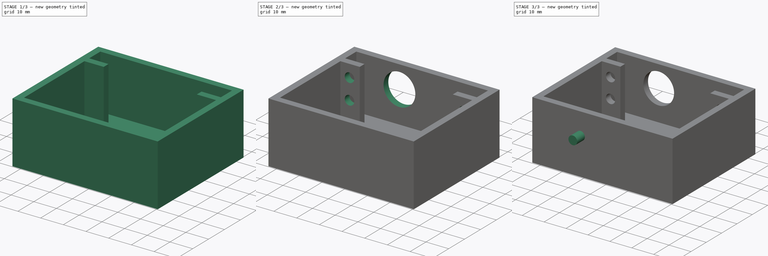
[diagram: build sequence overview — one tinted view per stage of 3, left to right]
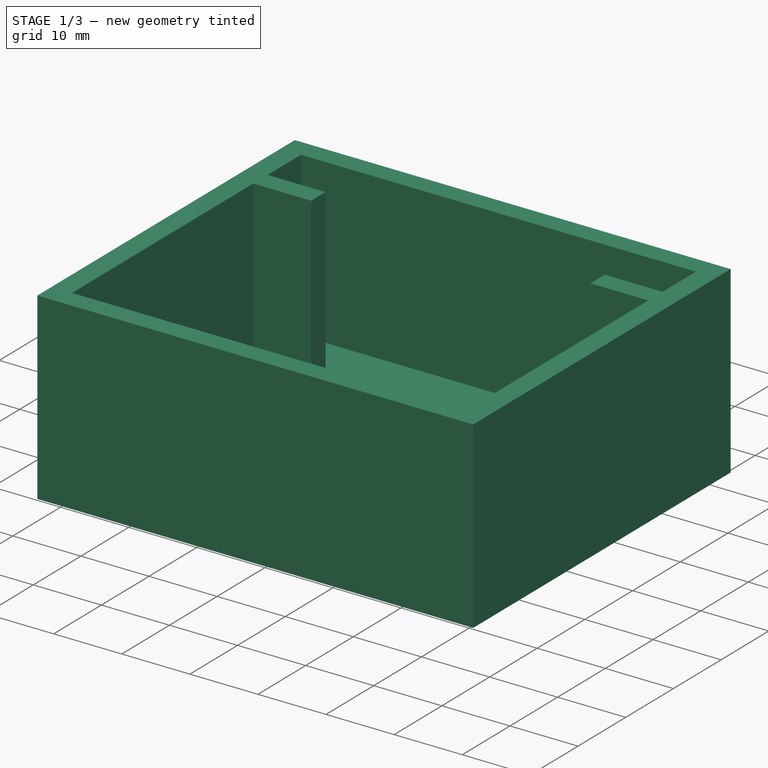
[diagram: stage 1 of 3 — iso view after this stage's code; geometry added in this stage tinted green]
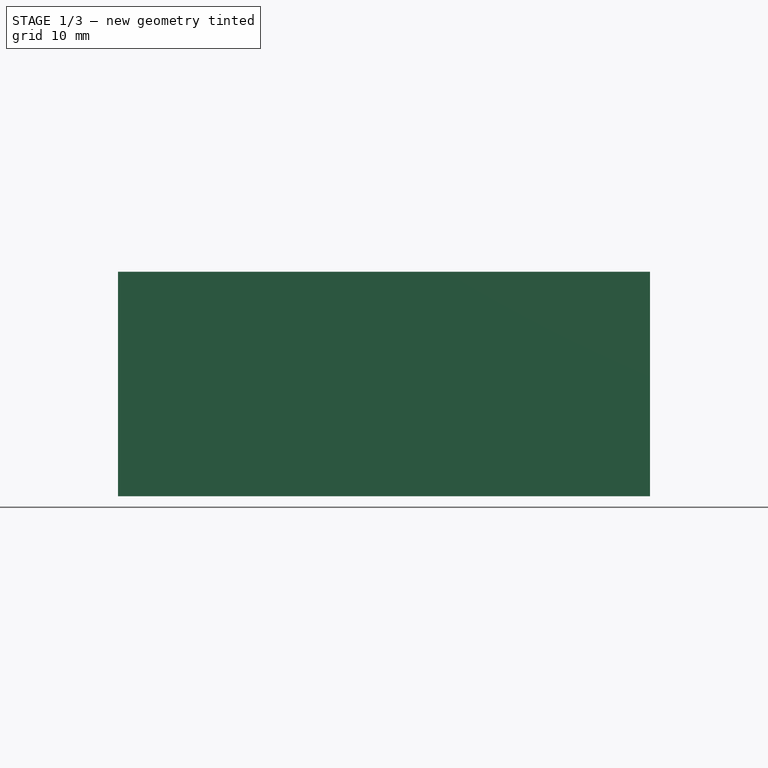
[diagram: stage 1 of 3 — front view after this stage's code; geometry added in this stage tinted green]
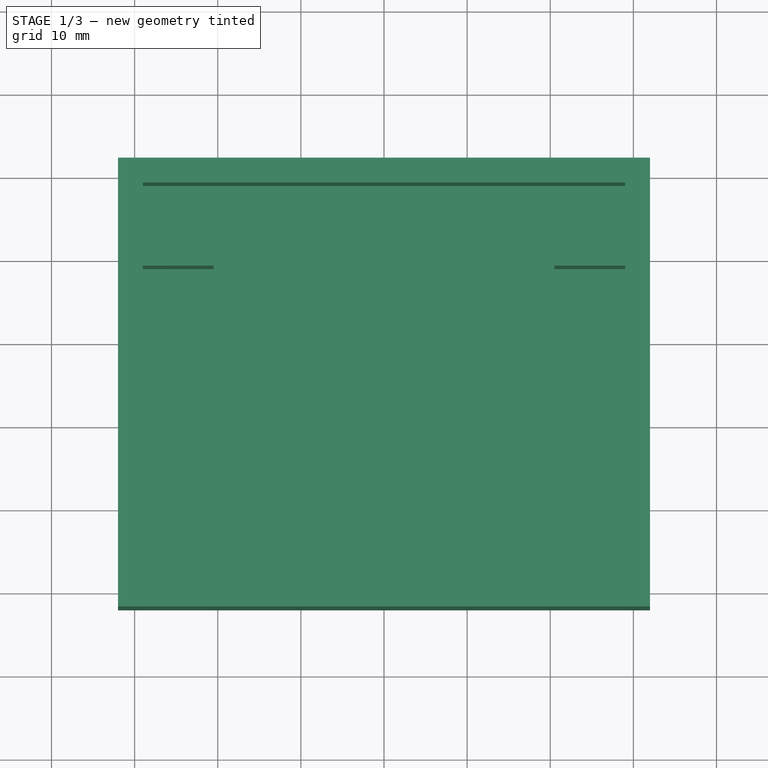
[diagram: stage 1 of 3 — top view after this stage's code; geometry added in this stage tinted green]
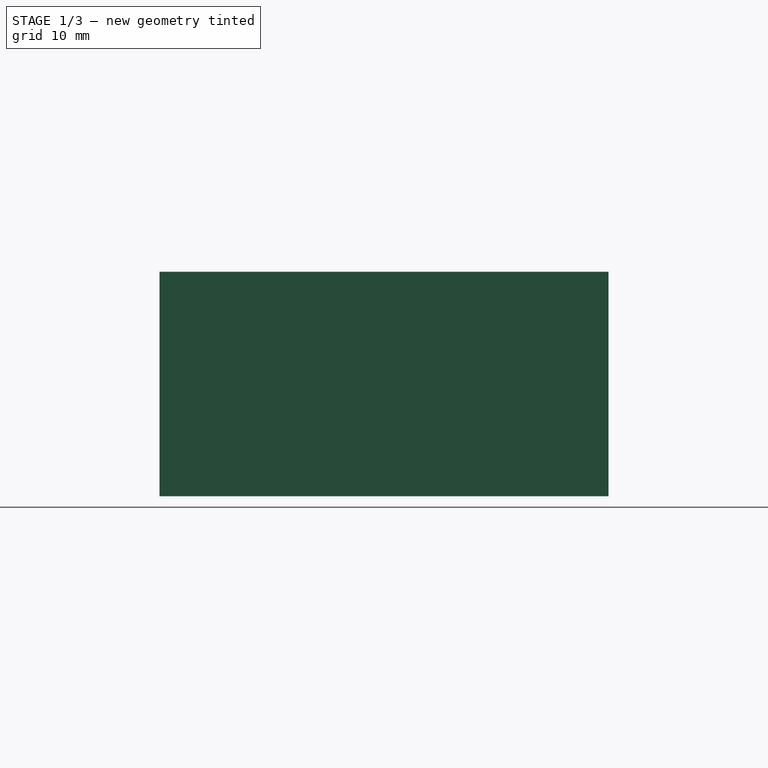
[diagram: stage 1 of 3 — right view after this stage's code; geometry added in this stage tinted green]
FCSTD DOCUMENT  (FreeCAD 0.18R4 (GitTag))
Label: Korob
License: All rights reserved
LicenseURL: http://en.wikipedia.org/wiki/All_rights_reserved
objects: Sketcher::SketchObject×6, PartDesign::Pocket×4, PartDesign::Pad×2, PartDesign::Body×1
note: 19 computed .brp shape members not serialized (recipe doc carries the construction recipe); baked Part::Feature solids carry a one-line shape summary decoded from their .brp

FEATURE [Sketcher::SketchObject] Sketch
  MapMode = 5
  Support = -> [XY_Plane]
  sketch-geometry (4):
    g0: LineSegment StartX=-12 StartY=42 StartZ=0 EndX=52 EndY=42 EndZ=0
    g1: LineSegment StartX=52 StartY=42 StartZ=0 EndX=52 EndY=-12 EndZ=0
    g2: LineSegment StartX=52 StartY=-12 StartZ=0 EndX=-12 EndY=-12 EndZ=0
    g3: LineSegment StartX=-12 StartY=-12 StartZ=0 EndX=-12 EndY=42 EndZ=0
  constraints (12):
    c: Coincident(g0,g1)
    c: Coincident(g1,g2)
    c: Coincident(g2,g3)
    c: Coincident(g3,g0)
    c: Horizontal(g0)
    c: Horizontal(g2)
    c: Vertical(g1)
    c: Vertical(g3)
    c: DistanceX(g2,g2) = 64
    c: DistanceY(g1,g1) = 54
    c: DistanceY(g-1,g0) = 42
    c: DistanceX(g0,g-1) = 12
FEATURE [PartDesign::Pad] Pad
  Length = 27
  Length2 = 100
  Profile = -> Sketch
  Reversed = true
  Type = 0
FEATURE [Sketcher::SketchObject] Sketch001
  MapMode = 5
  Support = -> [Pad]
  sketch-geometry (13):
    g0: LineSegment StartX=-9 StartY=39 StartZ=0 EndX=49 EndY=39 EndZ=0
    g1: LineSegment StartX=49 StartY=39 StartZ=0 EndX=49 EndY=32 EndZ=0
    g2: LineSegment StartX=49 StartY=-9 StartZ=0 EndX=-9 EndY=-9 EndZ=0
    g3: LineSegment StartX=-9 StartY=-9 StartZ=0 EndX=-9 EndY=29 EndZ=0
    g4: LineSegment StartX=-9 StartY=32 StartZ=0 EndX=-0.5 EndY=32 EndZ=0
    g5: LineSegment StartX=-0.5 StartY=32 StartZ=0 EndX=-0.5 EndY=29 EndZ=0
    g6: LineSegment StartX=-0.5 StartY=29 StartZ=0 EndX=-9 EndY=29 EndZ=0
    g7: LineSegment StartX=-9 StartY=32 StartZ=0 EndX=-9 EndY=39 EndZ=0
    g8: LineSegment StartX=40.5 StartY=32 StartZ=0 EndX=49 EndY=32 EndZ=0
    g9: LineSegment StartX=49 StartY=29 StartZ=0 EndX=40.5 EndY=29 EndZ=0
    g10: LineSegment StartX=40.5 StartY=29 StartZ=0 EndX=40.5 EndY=32 EndZ=0
    g11: LineSegment StartX=49 StartY=29 StartZ=0 EndX=49 EndY=-9 EndZ=0
    g12: LineSegment StartX=13.9999 StartY=56.4516 StartZ=0 EndX=6 EndY=56.5 EndZ=0
  constraints (36):
    c: Coincident(g0,g1)
    c: Coincident(g11,g2)
    c: Coincident(g2,g3)
    c: Coincident(g7,g0)
    c: Horizontal(g0)
    c: Horizontal(g2)
    c: Vertical(g1)
    c: Vertical(g3)
    c: DistanceX(g0,g-1) = 9
    c: DistanceY(g-1,g0) = 39
    c: DistanceY(g11,g1) = 48
    c: DistanceX(g0,g0) = 58
    c: Coincident(g4,g5)
    c: Coincident(g5,g6)
    c: Horizontal(g4)
    c: Horizontal(g6)
    c: Vertical(g5)
    c: Coincident(g7,g4)
    c: Tangent(g3,g7)
    c: DistanceX(g4,g4) = 8.5
    c: DistanceY(g5,g5) = 3
    c: DistanceY(g-1,g5) = 29
    c: Coincident(g3,g6)
    c: Coincident(g9,g10)
    c: Coincident(g10,g8)
    c: Horizontal(g8)
    c: Horizontal(g9)
    c: Vertical(g10)
    c: Coincident(g1,g8)
    c: Tangent(g1,g11)
    c: Coincident(g9,g11)
    c: DistanceY(g10,g10) = 3
    c: DistanceX(g8,g8) = 8.5
    c: DistanceY(g-1,g9) = 29
    c: Distance(g12) = 8
    c: DistanceX(g0,g12) = 15
FEATURE [PartDesign::Pocket] Pocket
  BaseFeature = -> Pad
  Length = 24
  Length2 = 100
  Profile = -> Sketch001
  Type = 0
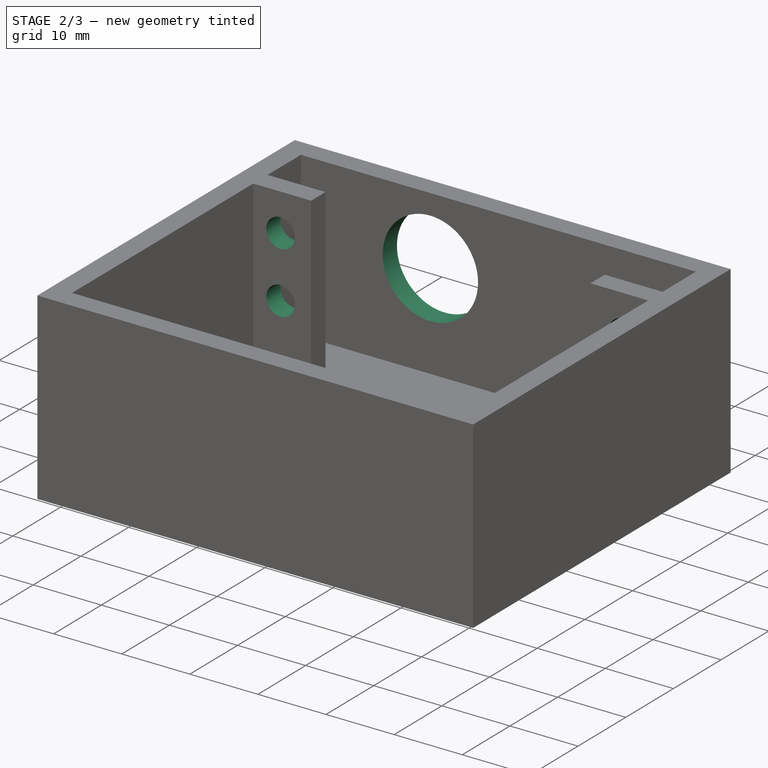
[diagram: stage 2 of 3 — iso view after this stage's code; geometry added in this stage tinted green]
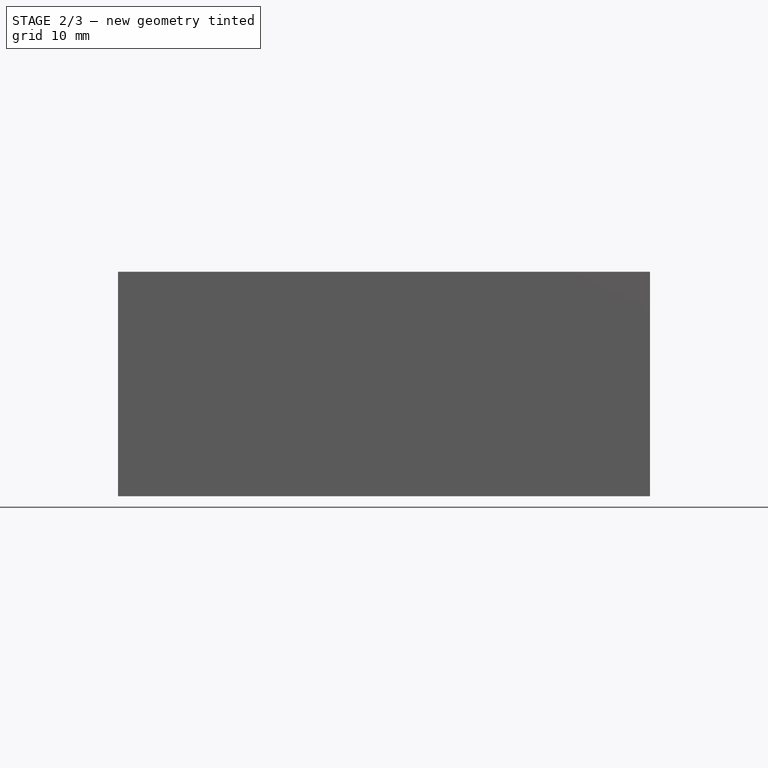
[diagram: stage 2 of 3 — front view after this stage's code; geometry added in this stage tinted green]
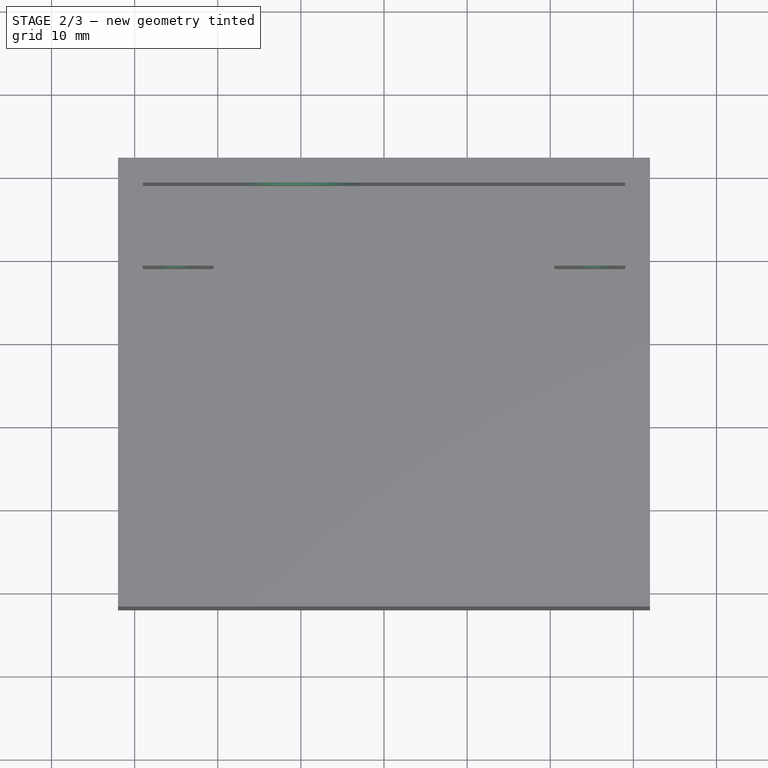
[diagram: stage 2 of 3 — top view after this stage's code; geometry added in this stage tinted green]
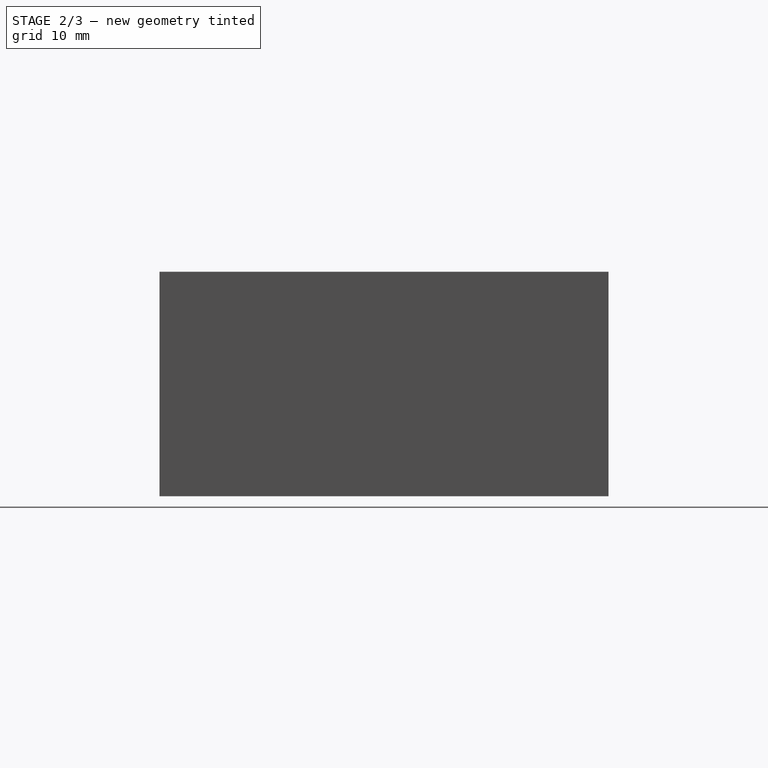
[diagram: stage 2 of 3 — right view after this stage's code; geometry added in this stage tinted green]
FEATURE [Sketcher::SketchObject] Sketch011
  MapMode = 5
  Placement = pos=(0,0,-27) rot=(1,0,0;3.14159rad)
  Support = -> [Pocket]
  sketch-geometry (4):
    g0: Circle CenterX=26.5 CenterY=1 CenterZ=0 NormalX=0 NormalY=0 NormalZ=1 AngleXU=0 Radius=2
    g1: Circle CenterX=10.5 CenterY=1 CenterZ=0 NormalX=0 NormalY=0 NormalZ=1 AngleXU=0 Radius=2
    g2: Circle CenterX=26.5 CenterY=-31 CenterZ=0 NormalX=0 NormalY=0 NormalZ=1 AngleXU=0 Radius=2
    g3: Circle CenterX=10.5 CenterY=-31 CenterZ=0 NormalX=0 NormalY=0 NormalZ=1 AngleXU=0 Radius=2
  constraints (12):
    c: Radius(g1) = 2
    c: Radius(g0) = 2
    c: DistanceX(g-1,g1) = 10.5
    c: DistanceY(g-1,g1) = 1
    c: DistanceX(g1,g0) = 16
    c: DistanceY(g0,g1) = 0
    c: Radius(g3) = 2
    c: Radius(g2) = 2
    c: DistanceX(g2,g0) = 0
    c: DistanceY(g2,g0) = 32
    c: DistanceY(g2,g3) = 0
    c: DistanceX(g3,g1) = 0
FEATURE [Sketcher::SketchObject] Sketch002
  MapMode = 5
  Placement = pos=(0,29,0) rot=(1,0,0;1.5708rad)
  Support = -> [Pocket]
  sketch-geometry (4):
    g0: Circle CenterX=45.3 CenterY=-5.5 CenterZ=0 NormalX=0 NormalY=0 NormalZ=1 AngleXU=0 Radius=2.1
    g1: Circle CenterX=45.3 CenterY=-14.5 CenterZ=0 NormalX=0 NormalY=0 NormalZ=1 AngleXU=0 Radius=2.1
    g2: Circle CenterX=-5 CenterY=-5.5 CenterZ=0 NormalX=0 NormalY=0 NormalZ=1 AngleXU=0 Radius=2.1
    g3: Circle CenterX=-5 CenterY=-14.5 CenterZ=0 NormalX=0 NormalY=0 NormalZ=1 AngleXU=0 Radius=2.1
  constraints (12):
    c: Radius(g0) = 2.1
    c: DistanceX(g-1,g0) = 45.3
    c: DistanceY(g0,g-1) = 5.5
    c: Radius(g1) = 2.1
    c: DistanceX(g-1,g1) = 45.3
    c: DistanceY(g1,g-1) = 14.5
    c: Radius(g2) = 2.1
    c: DistanceY(g2,g-1) = 5.5
    c: DistanceX(g2,g-1) = 5
    c: DistanceX(g3,g-1) = 5
    c: DistanceY(g3,g-1) = 14.5
    c: Radius(g3) = 2.1
FEATURE [PartDesign::Pocket] Pocket001
  BaseFeature = -> Pocket
  Length = 3
  Length2 = 100
  Profile = -> Sketch002
  Type = 0
FEATURE [Sketcher::SketchObject] Sketch003
  MapMode = 5
  Placement = pos=(0,42,0) rot=(0,0.707107,0.707107;3.14159rad)
  Support = -> [Pocket001]
  sketch-geometry (1):
    g0: Circle CenterX=-10 CenterY=-10 CenterZ=0 NormalX=0 NormalY=0 NormalZ=1 AngleXU=0 Radius=7
  constraints (3):
    c: DistanceX(g0,g-1) = 10
    c: DistanceY(g0,g-1) = 10
    c: Radius(g0) = 7
FEATURE [PartDesign::Pocket] Pocket002
  BaseFeature = -> Pocket001
  Length = 3
  Length2 = 100
  Profile = -> Sketch003
  Type = 0
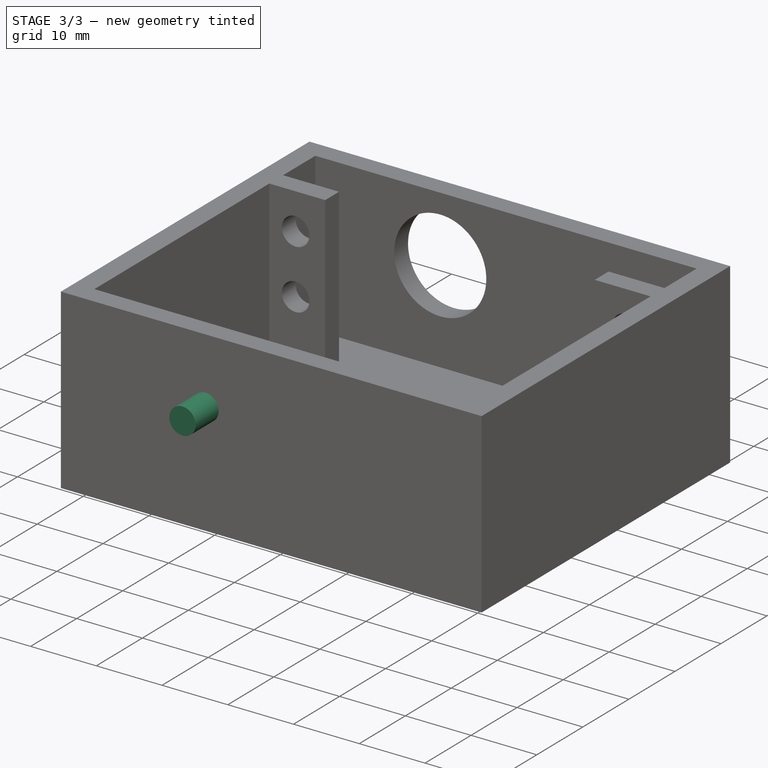
[diagram: stage 3 of 3 — iso view after this stage's code; geometry added in this stage tinted green]
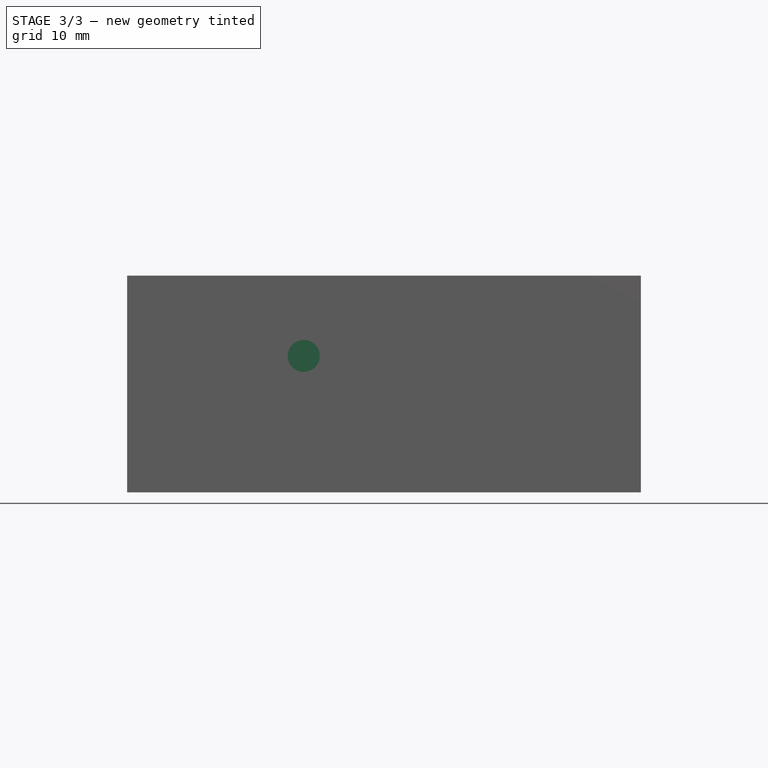
[diagram: stage 3 of 3 — front view after this stage's code; geometry added in this stage tinted green]
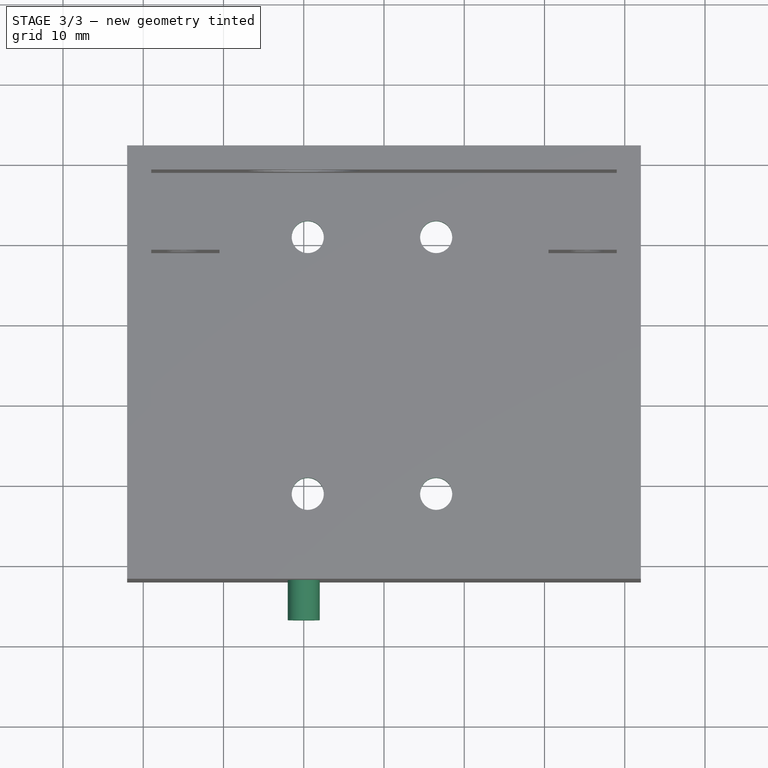
[diagram: stage 3 of 3 — top view after this stage's code; geometry added in this stage tinted green]
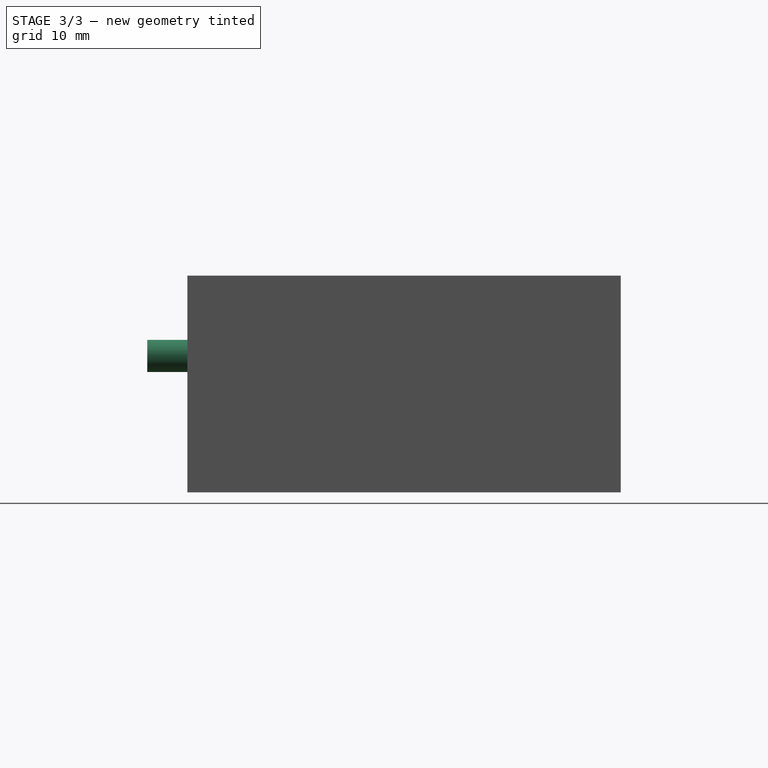
[diagram: stage 3 of 3 — right view after this stage's code; geometry added in this stage tinted green]
FEATURE [Sketcher::SketchObject] Sketch004
  ExternalGeometry = -> [Pocket002]
  MapMode = 5
  Placement = pos=(0,-12,0) rot=(1,0,0;1.5708rad)
  Support = -> [Pocket002]
  sketch-geometry (1):
    g0: Circle CenterX=10 CenterY=-10 CenterZ=0 NormalX=0 NormalY=0 NormalZ=1 AngleXU=0 Radius=2
  constraints (2):
    c: Coincident(g0,g-3)
    c: Radius(g0) = 2
FEATURE [PartDesign::Pad] Pad001
  BaseFeature = -> Pocket002
  Length = 5
  Length2 = 100
  Profile = -> Sketch004
  Type = 0
FEATURE [PartDesign::Pocket] Pocket006
  BaseFeature = -> Pad001
  Length = 3
  Length2 = 100
  Profile = -> Sketch011
  Type = 0
FEATURE [PartDesign::Body] Body  label=" Короб №1"
  Group = -> [Sketch,Pad,Sketch001,Pocket,Sketch002,Pocket001,Sketch003,Pocket002,Sketch004,Pad001,Sketch011,Pocket006]
  Origin = -> Origin
  Placement = pos=(-15,27,-36.5) rot=(0.57735,0.57735,0.57735;4.18879rad)
  Tip = -> Pocket006
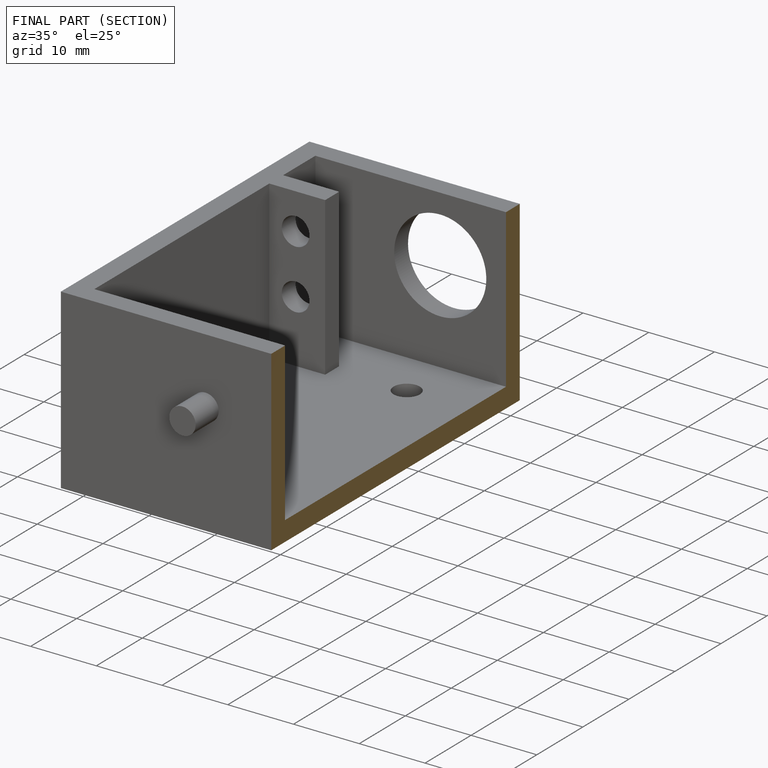
[diagram: finished part — half-section view (interior)]
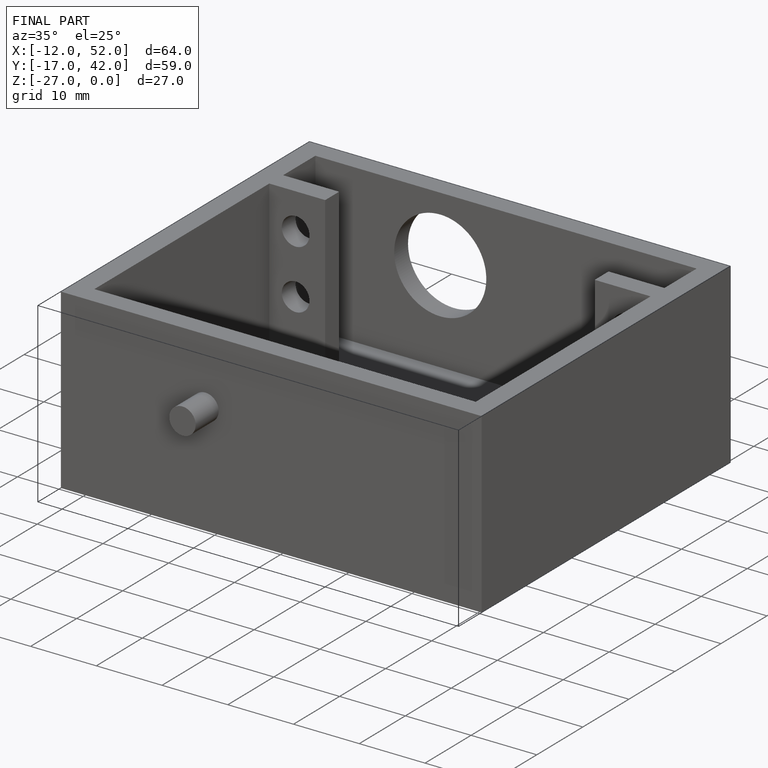
[diagram: finished part — iso view with bounding-box wireframe]
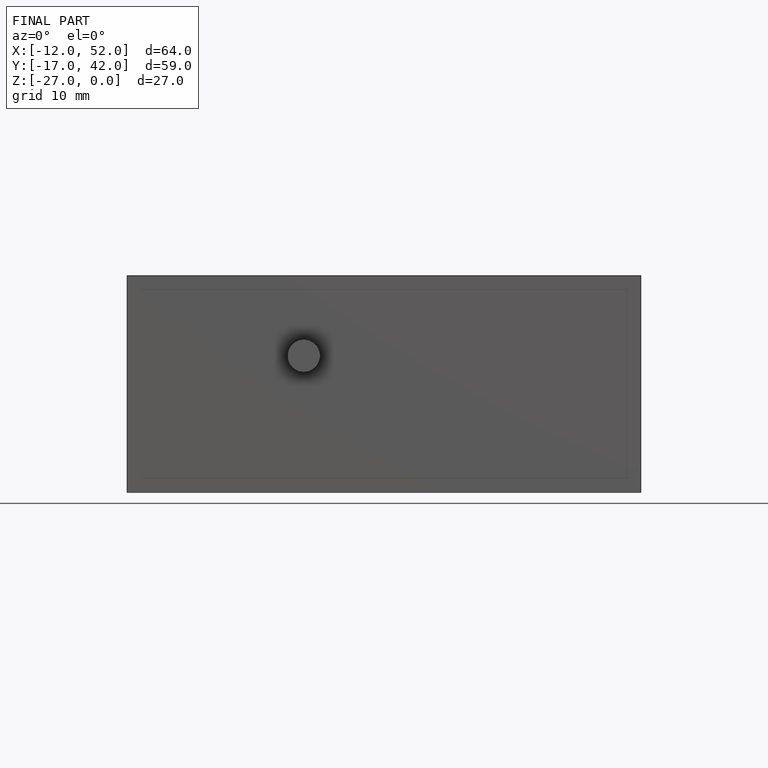
[diagram: finished part — front view with bounding-box wireframe]
